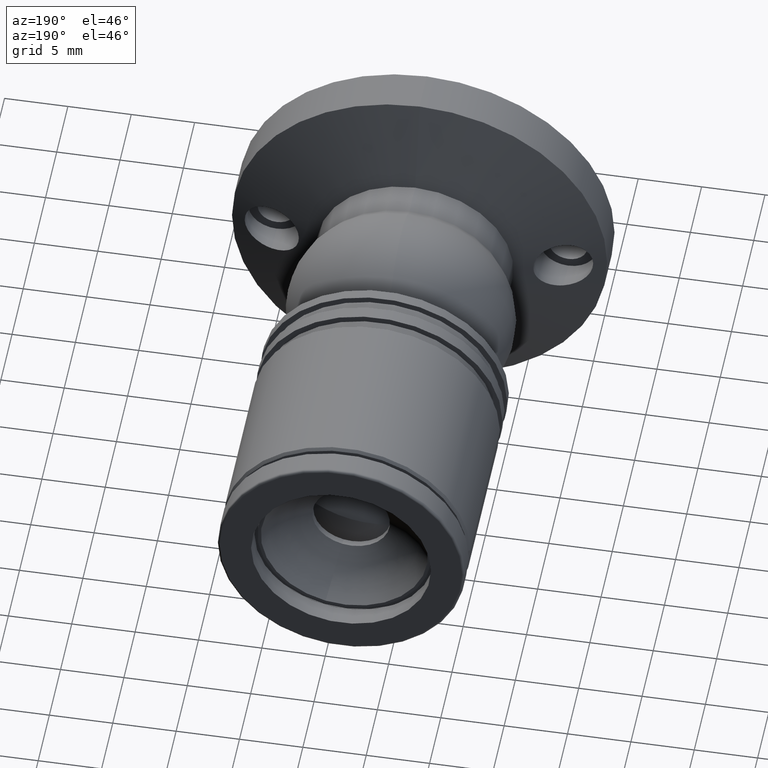
[diagram: clean part render]
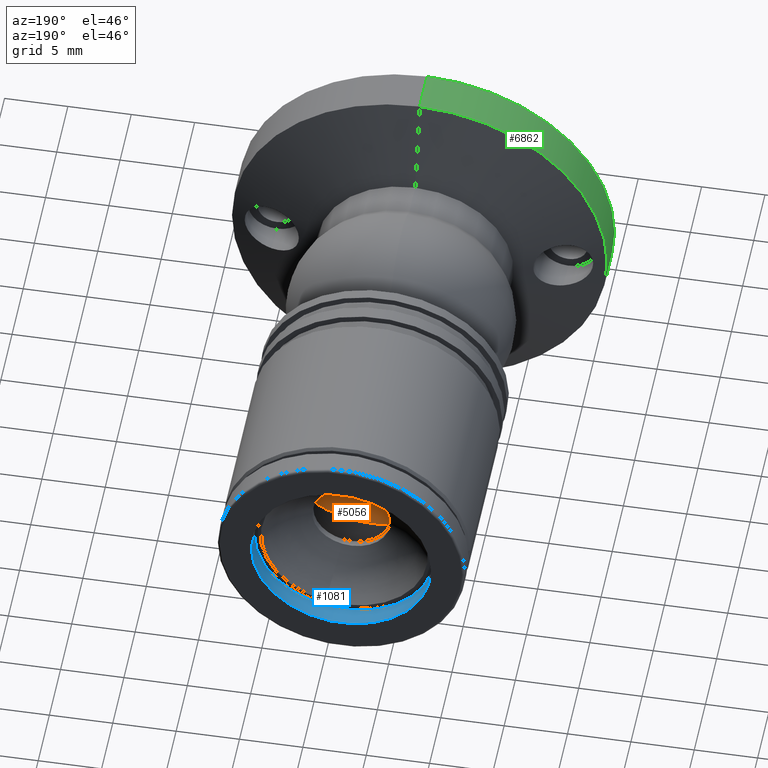
[diagram: same view with three faces highlighted in distinct colors, each labeled with its STEP entity id]
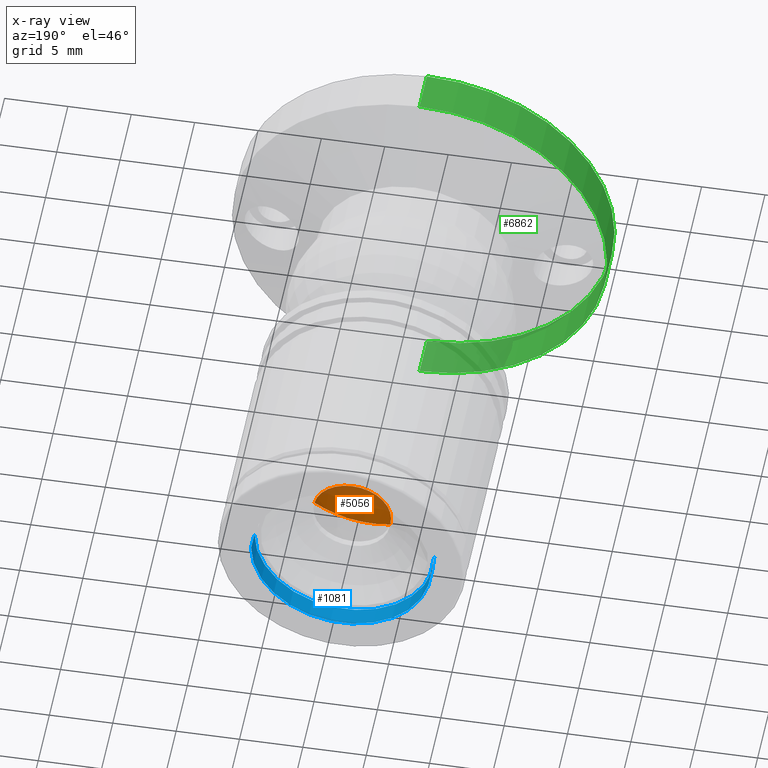
[diagram: x-ray of the same camera — body ghosted, the three highlighted faces saturated]
A machine part, auxiliary view with three faces highlighted in distinct colors.
The next image is the same camera in x-ray (body ghosted, the three faces saturated) — at least one of them is partly hidden behind the body in this view.
Their STEP definitions:

[orange] entity #5056 — the highlighted spherical surface has radius 8.1285 mm.
#323 = DIRECTION ( 'NONE',  ( 1.000000000000000000, 0.000000000000000000, 0.000000000000000000 ) ) ;
#440 = AXIS2_PLACEMENT_3D ( 'NONE', #3238, #8923, #7903 ) ;
#756 = AXIS2_PLACEMENT_3D ( 'NONE', #4021, #5443, #9106 ) ;
#1119 = DIRECTION ( 'NONE',  ( 1.224646799147353207E-16, -0.000000000000000000, 1.000000000000000000 ) ) ;
#1206 = EDGE_CURVE ( 'NONE', #3308, #3688, #3010, .T. ) ;
#1216 = SPHERICAL_SURFACE ( 'NONE', #8813, 8.128520833333336526 ) ;
#1425 = CIRCLE ( 'NONE', #756, 3.064999999999999503 ) ;
#1452 = EDGE_CURVE ( 'NONE', #6711, #3308, #9383, .T. ) ;
#2271 = ORIENTED_EDGE ( 'NONE', *, *, #1206, .F. ) ;
#2349 = ORIENTED_EDGE ( 'NONE', *, *, #6482, .F. ) ;
#2676 = CARTESIAN_POINT ( 'NONE',  ( 3.753542439386637280E-16, 6.699999999999999289, 3.064999999999999503 ) ) ;
#2998 = CARTESIAN_POINT ( 'NONE',  ( 4.977283510172122794E-16, 7.299999999999998934, 0.000000000000000000 ) ) ;
#3010 = CIRCLE ( 'NONE', #8243, 3.064999999999999503 ) ;
#3091 = VERTEX_POINT ( 'NONE', #7512 ) ;
#3238 = CARTESIAN_POINT ( 'NONE',  ( 0.000000000000000000, -0.8285208333333373698, 0.000000000000000000 ) ) ;
#3263 = ORIENTED_EDGE ( 'NONE', *, *, #1452, .F. ) ;
#3308 = VERTEX_POINT ( 'NONE', #7379 ) ;
#3688 = VERTEX_POINT ( 'NONE', #2676 ) ;
#4021 = CARTESIAN_POINT ( 'NONE',  ( 0.000000000000000000, 6.699999999999999289, 0.000000000000000000 ) ) ;
#4082 = CARTESIAN_POINT ( 'NONE',  ( 0.000000000000000000, -0.8285208333333373698, 0.000000000000000000 ) ) ;
#4413 = DIRECTION ( 'NONE',  ( -0.000000000000000000, -1.000000000000000000, -0.000000000000000000 ) ) ;
#4483 = DIRECTION ( 'NONE',  ( 0.000000000000000000, 0.000000000000000000, -1.000000000000000000 ) ) ;
#4912 = AXIS2_PLACEMENT_3D ( 'NONE', #6361, #1119, #8389 ) ;
#5056 = ADVANCED_FACE ( 'NONE', ( #6354 ), #1216, .T. ) ;
#5086 = CIRCLE ( 'NONE', #4912, 8.128520833333336526 ) ;
#5443 = DIRECTION ( 'NONE',  ( -0.000000000000000000, -1.000000000000000000, -0.000000000000000000 ) ) ;
#5647 = EDGE_CURVE ( 'NONE', #6711, #3091, #5086, .T. ) ;
#6354 = FACE_OUTER_BOUND ( 'NONE', #7720, .T. ) ;
#6361 = CARTESIAN_POINT ( 'NONE',  ( 0.000000000000000000, -0.8285208333333373698, 0.000000000000000000 ) ) ;
#6482 = EDGE_CURVE ( 'NONE', #3688, #3091, #1425, .T. ) ;
#6711 = VERTEX_POINT ( 'NONE', #2998 ) ;
#7379 = CARTESIAN_POINT ( 'NONE',  ( 3.064999999999999059, 6.699999999999999289, 0.000000000000000000 ) ) ;
#7512 = CARTESIAN_POINT ( 'NONE',  ( -3.064999999999999059, 6.699999999999999289, 3.753542439386637280E-16 ) ) ;
#7720 = EDGE_LOOP ( 'NONE', ( #3263, #9363, #2349, #2271 ) ) ;
#7903 = DIRECTION ( 'NONE',  ( -1.000000000000000000, 0.000000000000000000, 0.000000000000000000 ) ) ;
#8088 = CARTESIAN_POINT ( 'NONE',  ( 0.000000000000000000, 6.699999999999999289, 0.000000000000000000 ) ) ;
#8243 = AXIS2_PLACEMENT_3D ( 'NONE', #8088, #4413, #4483 ) ;
#8389 = DIRECTION ( 'NONE',  ( 1.000000000000000000, 0.000000000000000000, -1.224646799147352961E-16 ) ) ;
#8813 = AXIS2_PLACEMENT_3D ( 'NONE', #4082, #9075, #323 ) ;
#8923 = DIRECTION ( 'NONE',  ( 0.000000000000000000, 0.000000000000000000, -1.000000000000000000 ) ) ;
#9075 = DIRECTION ( 'NONE',  ( 0.000000000000000000, 0.000000000000000000, 1.000000000000000000 ) ) ;
#9106 = DIRECTION ( 'NONE',  ( 0.000000000000000000, 0.000000000000000000, -1.000000000000000000 ) ) ;
#9363 = ORIENTED_EDGE ( 'NONE', *, *, #5647, .T. ) ;
#9383 = CIRCLE ( 'NONE', #440, 8.128520833333336526 ) ;

[blue] entity #1081 — the highlighted cylindrical surface (partial cylindrical patch) has radius 7.1 mm, axis along (-0, -1, -0).
#287 = VECTOR ( 'NONE', #7887, 1000.000000000000000 ) ;
#998 = CARTESIAN_POINT ( 'NONE',  ( -7.100000000000010303, 25.76934397916141961, 8.694992273946213663E-16 ) ) ;
#1081 = ADVANCED_FACE ( 'NONE', ( #8898 ), #8216, .F. ) ;
#1096 = CARTESIAN_POINT ( 'NONE',  ( 7.099999999999999645, 25.76934397916141961, 0.000000000000000000 ) ) ;
#1556 = ORIENTED_EDGE ( 'NONE', *, *, #5825, .T. ) ;
#2034 = VERTEX_POINT ( 'NONE', #998 ) ;
#2105 = CARTESIAN_POINT ( 'NONE',  ( -5.327013619437526295E-15, 25.76934397916141961, 0.000000000000000000 ) ) ;
#2227 = VERTEX_POINT ( 'NONE', #1096 ) ;
#2249 = CARTESIAN_POINT ( 'NONE',  ( -7.100000000000010303, 7.105994076770519593E-15, 8.694992273946213663E-16 ) ) ;
#2418 = EDGE_CURVE ( 'NONE', #2034, #2227, #4078, .T. ) ;
#2661 = CARTESIAN_POINT ( 'NONE',  ( 7.099999999999999645, 24.26934397916141606, 0.000000000000000000 ) ) ;
#2766 = VECTOR ( 'NONE', #5133, 1000.000000000000000 ) ;
#2856 = DIRECTION ( 'NONE',  ( 1.000000000000000000, 0.000000000000000000, 0.000000000000000000 ) ) ;
#3056 = DIRECTION ( 'NONE',  ( 1.000000000000000000, 0.000000000000000000, 0.000000000000000000 ) ) ;
#3101 = EDGE_LOOP ( 'NONE', ( #8930, #6117, #1556, #8782 ) ) ;
#3539 = DIRECTION ( 'NONE',  ( 1.000000000000000000, -7.981960134056935202E-20, 0.000000000000000000 ) ) ;
#4078 = CIRCLE ( 'NONE', #4897, 7.100000000000004974 ) ;
#4897 = AXIS2_PLACEMENT_3D ( 'NONE', #2105, #8636, #2856 ) ;
#5133 = DIRECTION ( 'NONE',  ( -7.981960134060291135E-20, -1.000000000000000000, -0.000000000000000000 ) ) ;
#5271 = CARTESIAN_POINT ( 'NONE',  ( -5.327133348839537128E-15, 24.26934397916141606, 0.000000000000000000 ) ) ;
#5825 = EDGE_CURVE ( 'NONE', #8473, #8034, #6678, .T. ) ;
#6117 = ORIENTED_EDGE ( 'NONE', *, *, #7593, .T. ) ;
#6537 = EDGE_CURVE ( 'NONE', #2227, #8034, #8031, .T. ) ;
#6678 = CIRCLE ( 'NONE', #6689, 7.100000000000004974 ) ;
#6689 = AXIS2_PLACEMENT_3D ( 'NONE', #5271, #7446, #3056 ) ;
#7209 = CARTESIAN_POINT ( 'NONE',  ( -5.329070518200751394E-15, 7.105427357601001859E-15, 0.000000000000000000 ) ) ;
#7229 = CARTESIAN_POINT ( 'NONE',  ( 7.099999999999999645, 7.104860638431484124E-15, 0.000000000000000000 ) ) ;
#7446 = DIRECTION ( 'NONE',  ( -7.981960134060291135E-20, -1.000000000000000000, -0.000000000000000000 ) ) ;
#7593 = EDGE_CURVE ( 'NONE', #2034, #8473, #8364, .T. ) ;
#7887 = DIRECTION ( 'NONE',  ( -7.981960134060291135E-20, -1.000000000000000000, -0.000000000000000000 ) ) ;
#7931 = DIRECTION ( 'NONE',  ( -7.981960134060291135E-20, -1.000000000000000000, -0.000000000000000000 ) ) ;
#8031 = LINE ( 'NONE', #7229, #287 ) ;
#8034 = VERTEX_POINT ( 'NONE', #2661 ) ;
#8061 = AXIS2_PLACEMENT_3D ( 'NONE', #7209, #7931, #3539 ) ;
#8216 = CYLINDRICAL_SURFACE ( 'NONE', #8061, 7.100000000000004974 ) ;
#8364 = LINE ( 'NONE', #2249, #2766 ) ;
#8473 = VERTEX_POINT ( 'NONE', #8790 ) ;
#8636 = DIRECTION ( 'NONE',  ( -7.981960134060291135E-20, -1.000000000000000000, -0.000000000000000000 ) ) ;
#8782 = ORIENTED_EDGE ( 'NONE', *, *, #6537, .F. ) ;
#8790 = CARTESIAN_POINT ( 'NONE',  ( -7.100000000000010303, 24.26934397916141606, 8.694992273946213663E-16 ) ) ;
#8898 = FACE_OUTER_BOUND ( 'NONE', #3101, .T. ) ;
#8930 = ORIENTED_EDGE ( 'NONE', *, *, #2418, .F. ) ;

[green] entity #6862 — the highlighted cylindrical surface (partial cylindrical patch) has radius 14.8 mm, axis along (-0, -1, -0).
#71 = DIRECTION ( 'NONE',  ( -0.000000000000000000, -1.000000000000000000, -0.000000000000000000 ) ) ;
#453 = ORIENTED_EDGE ( 'NONE', *, *, #4695, .T. ) ;
#1370 = DIRECTION ( 'NONE',  ( -0.000000000000000000, -1.000000000000000000, -0.000000000000000000 ) ) ;
#1388 = LINE ( 'NONE', #7646, #6982 ) ;
#1863 = CARTESIAN_POINT ( 'NONE',  ( 1.812477262738091158E-15, 0.000000000000000000, 14.80000000000006821 ) ) ;
#1876 = DIRECTION ( 'NONE',  ( -0.000000000000000000, -1.000000000000000000, -0.000000000000000000 ) ) ;
#2075 = ORIENTED_EDGE ( 'NONE', *, *, #8771, .F. ) ;
#2426 = CYLINDRICAL_SURFACE ( 'NONE', #4293, 14.80000000000006821 ) ;
#2716 = VERTEX_POINT ( 'NONE', #9047 ) ;
#2938 = CARTESIAN_POINT ( 'NONE',  ( 0.000000000000000000, 3.299999999999997158, 0.000000000000000000 ) ) ;
#3073 = AXIS2_PLACEMENT_3D ( 'NONE', #5674, #6350, #5740 ) ;
#3438 = FACE_OUTER_BOUND ( 'NONE', #5520, .T. ) ;
#3506 = CARTESIAN_POINT ( 'NONE',  ( 0.000000000000000000, -2.351338188525915029, -14.80000000000006821 ) ) ;
#3839 = DIRECTION ( 'NONE',  ( -0.000000000000000000, -1.000000000000000000, -0.000000000000000000 ) ) ;
#4155 = CIRCLE ( 'NONE', #6204, 14.80000000000006821 ) ;
#4293 = AXIS2_PLACEMENT_3D ( 'NONE', #7502, #3839, #7539 ) ;
#4601 = CARTESIAN_POINT ( 'NONE',  ( 0.000000000000000000, 3.299999999999997158, -14.80000000000006821 ) ) ;
#4627 = ORIENTED_EDGE ( 'NONE', *, *, #8881, .F. ) ;
#4695 = EDGE_CURVE ( 'NONE', #8115, #9368, #6922, .T. ) ;
#4792 = CARTESIAN_POINT ( 'NONE',  ( 0.000000000000000000, 0.000000000000000000, -14.80000000000006821 ) ) ;
#5128 = DIRECTION ( 'NONE',  ( 0.000000000000000000, 0.000000000000000000, -1.000000000000000000 ) ) ;
#5216 = EDGE_CURVE ( 'NONE', #2716, #8115, #4155, .T. ) ;
#5520 = EDGE_LOOP ( 'NONE', ( #2075, #5836, #453, #4627 ) ) ;
#5674 = CARTESIAN_POINT ( 'NONE',  ( 0.000000000000000000, 0.000000000000000000, 0.000000000000000000 ) ) ;
#5740 = DIRECTION ( 'NONE',  ( 0.000000000000000000, 0.000000000000000000, -1.000000000000000000 ) ) ;
#5836 = ORIENTED_EDGE ( 'NONE', *, *, #5216, .T. ) ;
#6204 = AXIS2_PLACEMENT_3D ( 'NONE', #2938, #71, #5128 ) ;
#6350 = DIRECTION ( 'NONE',  ( -0.000000000000000000, -1.000000000000000000, -0.000000000000000000 ) ) ;
#6862 = ADVANCED_FACE ( 'NONE', ( #3438 ), #2426, .T. ) ;
#6922 = LINE ( 'NONE', #3506, #7829 ) ;
#6982 = VECTOR ( 'NONE', #1876, 1000.000000000000000 ) ;
#7502 = CARTESIAN_POINT ( 'NONE',  ( 0.000000000000000000, -2.351338188525915029, 0.000000000000000000 ) ) ;
#7539 = DIRECTION ( 'NONE',  ( 0.000000000000000000, 0.000000000000000000, -1.000000000000000000 ) ) ;
#7646 = CARTESIAN_POINT ( 'NONE',  ( 1.812477262738091158E-15, -2.351338188525915029, 14.80000000000006821 ) ) ;
#7829 = VECTOR ( 'NONE', #1370, 1000.000000000000000 ) ;
#8115 = VERTEX_POINT ( 'NONE', #4601 ) ;
#8771 = EDGE_CURVE ( 'NONE', #2716, #9332, #1388, .T. ) ;
#8881 = EDGE_CURVE ( 'NONE', #9332, #9368, #8917, .T. ) ;
#8917 = CIRCLE ( 'NONE', #3073, 14.80000000000006821 ) ;
#9047 = CARTESIAN_POINT ( 'NONE',  ( 1.812477262738091158E-15, 3.299999999999997158, 14.80000000000006821 ) ) ;
#9332 = VERTEX_POINT ( 'NONE', #1863 ) ;
#9368 = VERTEX_POINT ( 'NONE', #4792 ) ;